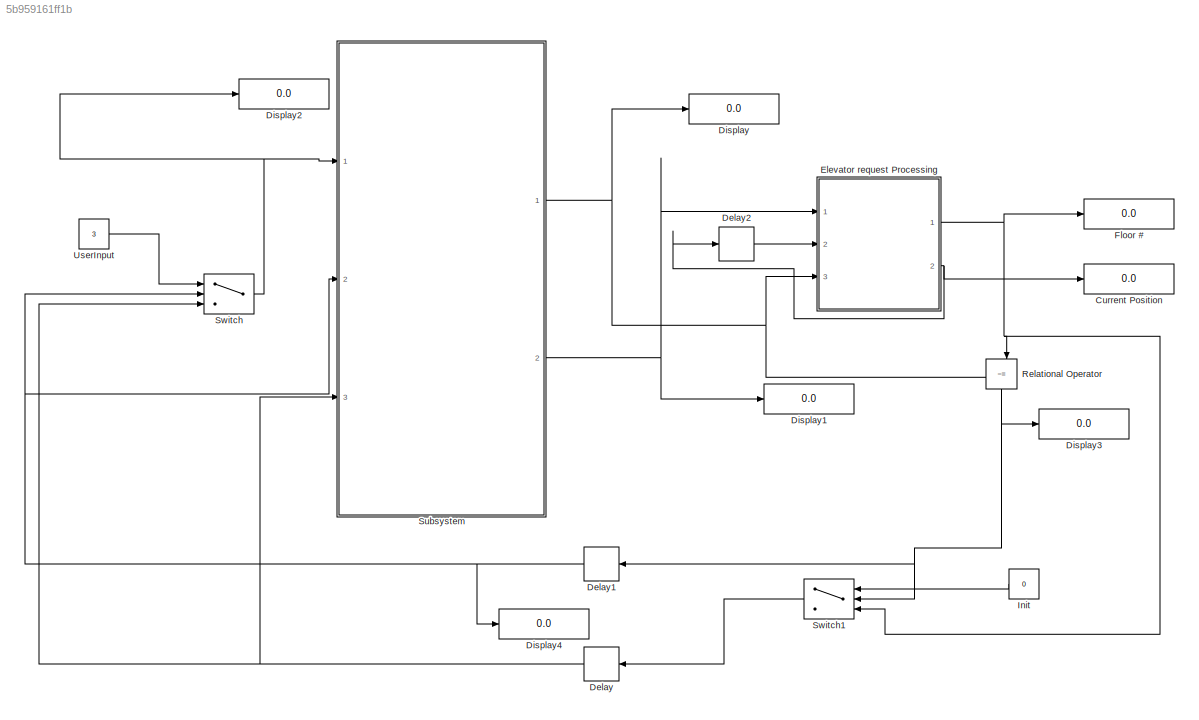
MODEL slx_5b959161ff1b
KIND model
BLOCK [Display] Current Position
  Decimation = 1
  Ports = [1]
BLOCK [Delay] Delay
  DelayLength = 100
  InitialCondition = 0
  InputPortMap = u0
  Ports = [1, 1]
  SampleTime = .0001
BLOCK [Delay] Delay1
  DelayLength = 100
  InitialCondition = 1
  InputPortMap = u0
  Ports = [1, 1]
  SampleTime = .0001
BLOCK [Delay] Delay2
  DelayLength = 100
  InitialCondition = 0
  InputPortMap = u0
  Ports = [1, 1]
  SampleTime = .0001
BLOCK [Display] Display
  Decimation = 1
  Ports = [1]
BLOCK [Display] Display1
  Decimation = 1
  Ports = [1]
BLOCK [Display] Display2
  Decimation = 1
  Ports = [1]
BLOCK [Display] Display3
  Decimation = 1
  Ports = [1]
BLOCK [Display] Display4
  Decimation = 1
  Ports = [1]
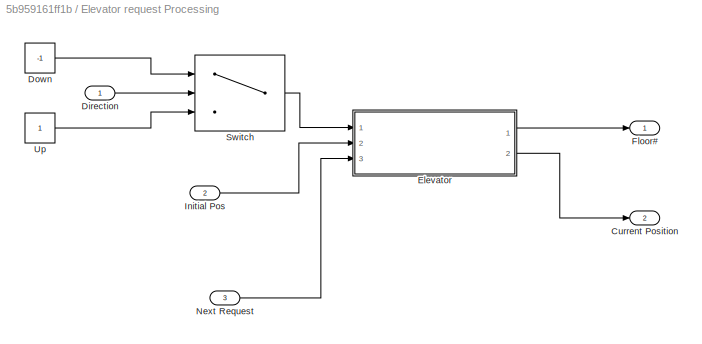
BLOCK [SubSystem] Elevator request Processing
  Ports = [3, 2]
  RequestExecContextInheritance = off
BLOCK [Outport] Elevator request Processing/Current Position
  IconDisplay = Port number
  Port = 2
BLOCK [Inport] Elevator request Processing/Direction
  IconDisplay = Port number
BLOCK [Constant] Elevator request Processing/Down
  Value = -1
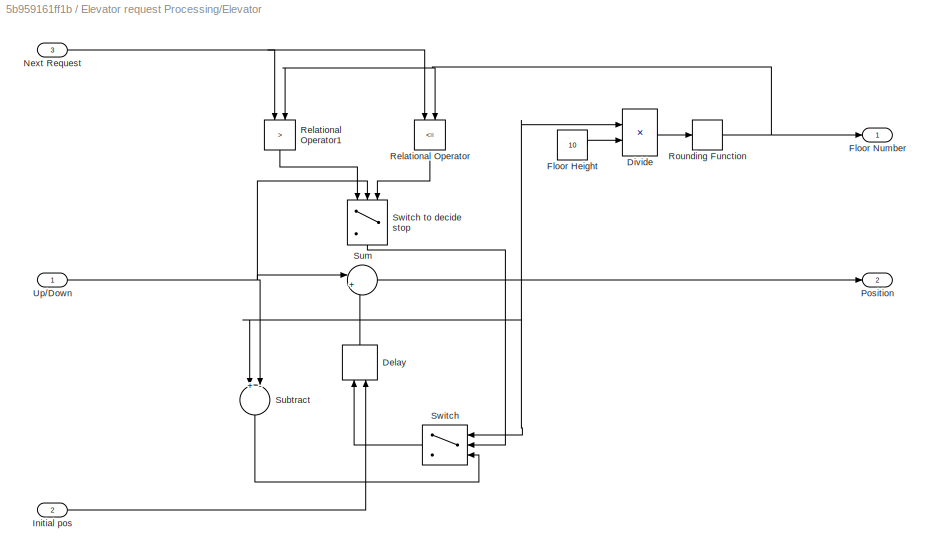
BLOCK [SubSystem] Elevator request Processing/Elevator
  Ports = [3, 2]
  RequestExecContextInheritance = off
BLOCK [Delay] Elevator request Processing/Elevator/Delay
  DelayLength = 1000
  InitialCondition = 2
  InitialConditionSource = Input port
  InputPortMap = u0,p4
  Ports = [2, 1]
  SampleTime = .001
BLOCK [Product] Elevator request Processing/Elevator/Divide
  InputSameDT = off
  Inputs = */
  LockScale = on
  OutDataTypeStr = Inherit: Inherit via internal rule
  Ports = [2, 1]
  RndMeth = Nearest
  SaturateOnIntegerOverflow = off
BLOCK [Constant] Elevator request Processing/Elevator/Floor Height
  Value = 10
BLOCK [Outport] Elevator request Processing/Elevator/Floor Number
  IconDisplay = Port number
BLOCK [Inport] Elevator request Processing/Elevator/Initial pos
  IconDisplay = Port number
  Port = 2
BLOCK [Inport] Elevator request Processing/Elevator/Next Request
  IconDisplay = Port number
  Port = 3
BLOCK [Outport] Elevator request Processing/Elevator/Position
  IconDisplay = Port number
  Port = 2
BLOCK [RelationalOperator] Elevator request Processing/Elevator/Relational Operator
  InputSameDT = off
  Operator = <=
  OutDataTypeStr = boolean
  Ports = [2, 1]
BLOCK [RelationalOperator] Elevator request Processing/Elevator/Relational Operator1
  InputSameDT = off
  Operator = >
  OutDataTypeStr = boolean
  Ports = [2, 1]
BLOCK [Rounding] Elevator request Processing/Elevator/Rounding Function
BLOCK [Sum] Elevator request Processing/Elevator/Subtract
  InputSameDT = off
  Inputs = +-
  OutDataTypeStr = Inherit: Inherit via internal rule
  Ports = [2, 1]
  SaturateOnIntegerOverflow = off
BLOCK [Sum] Elevator request Processing/Elevator/Sum
  IconShape = round
  InputSameDT = off
  Inputs = |++
  OutDataTypeStr = Inherit: Inherit via internal rule
  Ports = [2, 1]
  SaturateOnIntegerOverflow = off
BLOCK [Switch] Elevator request Processing/Elevator/Switch
  Criteria = u2 ~= 0
  InputSameDT = off
  SaturateOnIntegerOverflow = off
BLOCK [Switch] Elevator request Processing/Elevator/Switch to decide stop
  InputSameDT = off
  SaturateOnIntegerOverflow = off
  Threshold = 1
BLOCK [Inport] Elevator request Processing/Elevator/Up//Down
  IconDisplay = Port number
BLOCK [Outport] Elevator request Processing/Floor#
  IconDisplay = Port number
BLOCK [Inport] Elevator request Processing/Initial Pos
  IconDisplay = Port number
  Port = 2
BLOCK [Inport] Elevator request Processing/Next Request
  IconDisplay = Port number
  Port = 3
BLOCK [Switch] Elevator request Processing/Switch
  Criteria = u2 ~= 0
  InputSameDT = off
  SaturateOnIntegerOverflow = off
BLOCK [Constant] Elevator request Processing/Up
BLOCK [Display] Floor #
  Decimation = 1
  Ports = [1]
BLOCK [Constant] Init
  Value = 0
BLOCK [RelationalOperator] Relational Operator
  InputSameDT = off
  Operator = ~=
  OutDataTypeStr = boolean
  Ports = [2, 1]
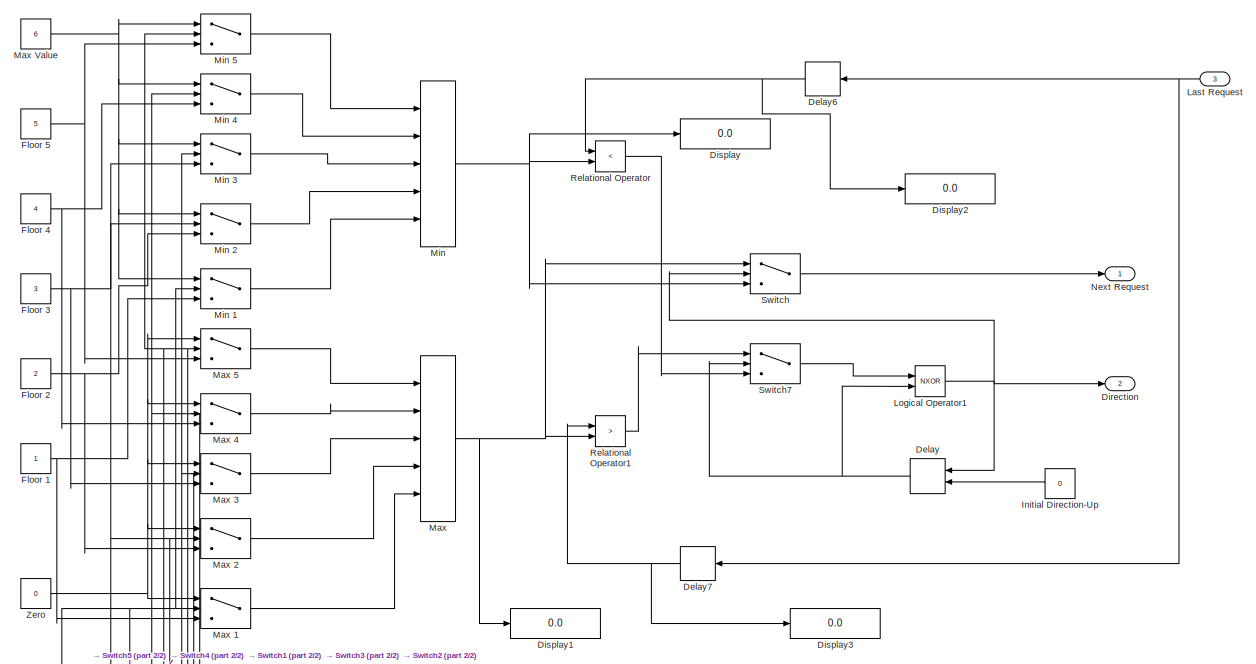
[diagram: Subsystem - part 1/2, full width, top band]
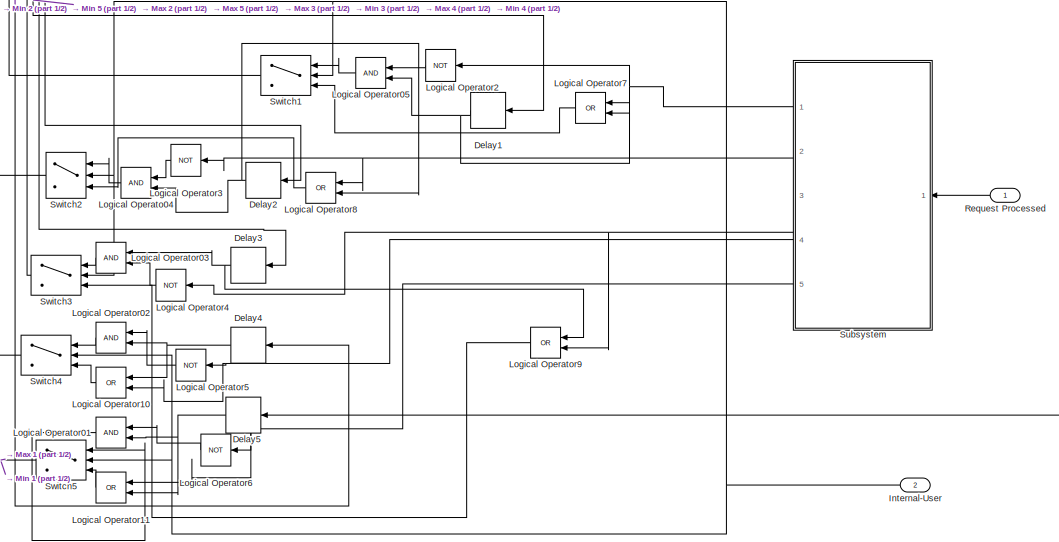
[diagram: Subsystem - part 2/2, full width, bottom band]
BLOCK [SubSystem] Subsystem
  Ports = [3, 2]
  RequestExecContextInheritance = off
BLOCK [Delay] Subsystem/Delay
  DelayLength = 1
  InitialCondition = 0
  InitialConditionSource = Input port
  InputPortMap = u0,p4
  Ports = [2, 1]
  SampleTime = 1
BLOCK [Delay] Subsystem/Delay1
  DelayLength = 1
  InitialCondition = 1
  InputPortMap = u0
  Ports = [1, 1]
  SampleTime = 1
BLOCK [Delay] Subsystem/Delay2
  DelayLength = 1
  InitialCondition = 1
  InputPortMap = u0
  Ports = [1, 1]
  SampleTime = 1
BLOCK [Delay] Subsystem/Delay3
  DelayLength = 1
  InitialCondition = 1
  InputPortMap = u0
  Ports = [1, 1]
  SampleTime = 1
BLOCK [Delay] Subsystem/Delay4
  DelayLength = 1
  InitialCondition = 1
  InputPortMap = u0
  Ports = [1, 1]
  SampleTime = 1
BLOCK [Delay] Subsystem/Delay5
  DelayLength = 1
  InitialCondition = 1
  InputPortMap = u0
  Ports = [1, 1]
  SampleTime = 1
BLOCK [Delay] Subsystem/Delay6
  DelayLength = 1
  InitialCondition = 0
  InputPortMap = u0
  Ports = [1, 1]
BLOCK [Delay] Subsystem/Delay7
  DelayLength = 1
  InitialCondition = 0
  InputPortMap = u0
  Ports = [1, 1]
BLOCK [Outport] Subsystem/Direction
  IconDisplay = Port number
  Port = 2
BLOCK [Display] Subsystem/Display
  Decimation = 1
  Ports = [1]
BLOCK [Display] Subsystem/Display1
  Decimation = 1
  Ports = [1]
BLOCK [Display] Subsystem/Display2
  Decimation = 1
  Ports = [1]
BLOCK [Display] Subsystem/Display3
  Decimation = 1
  Ports = [1]
BLOCK [Constant] Subsystem/Floor 1
BLOCK [Constant] Subsystem/Floor 2
  Value = 2
BLOCK [Constant] Subsystem/Floor 3
  Value = 3
BLOCK [Constant] Subsystem/Floor 4
  Value = 4
BLOCK [Constant] Subsystem/Floor 5
  Value = 5
BLOCK [Constant] Subsystem/Initial Direction-Up
  OutDataTypeStr = boolean
  Value = 0
BLOCK [Inport] Subsystem/Internal-User
  IconDisplay = Port number
  Port = 2
BLOCK [Inport] Subsystem/Last Request
  IconDisplay = Port number
  Port = 3
BLOCK [Logic] Subsystem/Logical Operato04
  AllPortsSameDT = off
  OutDataTypeStr = boolean
  Ports = [2, 1]
BLOCK [Logic] Subsystem/Logical Operator01
  AllPortsSameDT = off
  OutDataTypeStr = boolean
  Ports = [2, 1]
BLOCK [Logic] Subsystem/Logical Operator02
  AllPortsSameDT = off
  OutDataTypeStr = boolean
  Ports = [2, 1]
BLOCK [Logic] Subsystem/Logical Operator03
  AllPortsSameDT = off
  OutDataTypeStr = boolean
  Ports = [2, 1]
BLOCK [Logic] Subsystem/Logical Operator05
  AllPortsSameDT = off
  OutDataTypeStr = boolean
  Ports = [2, 1]
BLOCK [Logic] Subsystem/Logical Operator1
  AllPortsSameDT = off
  Operator = NXOR
  OutDataTypeStr = boolean
  Ports = [2, 1]
BLOCK [Logic] Subsystem/Logical Operator10
  AllPortsSameDT = off
  Operator = OR
  OutDataTypeStr = boolean
  Ports = [2, 1]
BLOCK [Logic] Subsystem/Logical Operator11
  AllPortsSameDT = off
  Operator = OR
  OutDataTypeStr = boolean
  Ports = [2, 1]
BLOCK [Logic] Subsystem/Logical Operator2
  AllPortsSameDT = off
  Operator = NOT
  OutDataTypeStr = boolean
  Ports = [1, 1]
BLOCK [Logic] Subsystem/Logical Operator3
  AllPortsSameDT = off
  Operator = NOT
  OutDataTypeStr = boolean
  Ports = [1, 1]
BLOCK [Logic] Subsystem/Logical Operator4
  AllPortsSameDT = off
  Operator = NOT
  OutDataTypeStr = boolean
  Ports = [1, 1]
BLOCK [Logic] Subsystem/Logical Operator5
  AllPortsSameDT = off
  Operator = NOT
  OutDataTypeStr = boolean
  Ports = [1, 1]
BLOCK [Logic] Subsystem/Logical Operator6
  AllPortsSameDT = off
  Operator = NOT
  OutDataTypeStr = boolean
  Ports = [1, 1]
BLOCK [Logic] Subsystem/Logical Operator7
  AllPortsSameDT = off
  Operator = OR
  OutDataTypeStr = boolean
  Ports = [2, 1]
BLOCK [Logic] Subsystem/Logical Operator8
  AllPortsSameDT = off
  Operator = OR
  OutDataTypeStr = boolean
  Ports = [2, 1]
BLOCK [Logic] Subsystem/Logical Operator9
  AllPortsSameDT = off
  Operator = OR
  OutDataTypeStr = boolean
  Ports = [2, 1]
BLOCK [MinMax] Subsystem/Max
  Function = max
  InputSameDT = off
  Inputs = 5
  Ports = [5, 1]
  SaturateOnIntegerOverflow = off
BLOCK [Switch] Subsystem/Max 1
  Criteria = u2 ~= 0
  InputSameDT = off
  SaturateOnIntegerOverflow = off
BLOCK [Switch] Subsystem/Max 2
  Criteria = u2 ~= 0
  InputSameDT = off
  SaturateOnIntegerOverflow = off
BLOCK [Switch] Subsystem/Max 3
  Criteria = u2 ~= 0
  InputSameDT = off
  SaturateOnIntegerOverflow = off
BLOCK [Switch] Subsystem/Max 4
  Criteria = u2 ~= 0
  InputSameDT = off
  SaturateOnIntegerOverflow = off
BLOCK [Switch] Subsystem/Max 5
  Criteria = u2 ~= 0
  InputSameDT = off
  SaturateOnIntegerOverflow = off
BLOCK [Constant] Subsystem/Max Value
  Value = 6
BLOCK [MinMax] Subsystem/Min
  InputSameDT = off
  Inputs = 5
  Ports = [5, 1]
  SaturateOnIntegerOverflow = off
BLOCK [Switch] Subsystem/Min 1
  Criteria = u2 ~= 0
  InputSameDT = off
  SaturateOnIntegerOverflow = off
BLOCK [Switch] Subsystem/Min 2
  Criteria = u2 ~= 0
  InputSameDT = off
  SaturateOnIntegerOverflow = off
BLOCK [Switch] Subsystem/Min 3
  Criteria = u2 ~= 0
  InputSameDT = off
  SaturateOnIntegerOverflow = off
BLOCK [Switch] Subsystem/Min 4
  Criteria = u2 ~= 0
  InputSameDT = off
  SaturateOnIntegerOverflow = off
BLOCK [Switch] Subsystem/Min 5
  Criteria = u2 ~= 0
  InputSameDT = off
  SaturateOnIntegerOverflow = off
  Threshold = 5
BLOCK [Outport] Subsystem/Next Request
  IconDisplay = Port number
BLOCK [RelationalOperator] Subsystem/Relational Operator
  InputSameDT = off
  Operator = <
  OutDataTypeStr = boolean
  Ports = [2, 1]
BLOCK [RelationalOperator] Subsystem/Relational Operator1
  InputSameDT = off
  Operator = >
  OutDataTypeStr = boolean
  Ports = [2, 1]
BLOCK [Inport] Subsystem/Request Processed
  IconDisplay = Port number
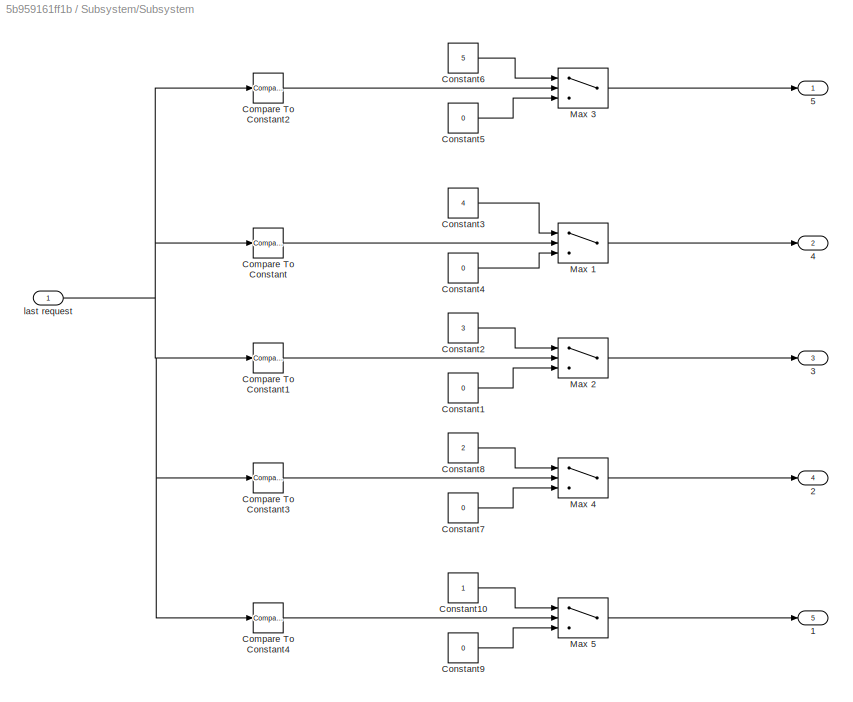
BLOCK [SubSystem] Subsystem/Subsystem
  Ports = [1, 5]
  RequestExecContextInheritance = off
BLOCK [Outport] Subsystem/Subsystem/1
  IconDisplay = Port number
  Port = 5
BLOCK [Outport] Subsystem/Subsystem/2
  IconDisplay = Port number
  Port = 4
BLOCK [Outport] Subsystem/Subsystem/3
  IconDisplay = Port number
  Port = 3
BLOCK [Outport] Subsystem/Subsystem/4
  IconDisplay = Port number
  Port = 2
BLOCK [Outport] Subsystem/Subsystem/5
  IconDisplay = Port number
BLOCK [Reference] Subsystem/Subsystem/Compare To Constant  REF=simulink/Logic and Bit
Operations/Compare
To Constant
  OutDataTypeStr = boolean
  Ports = [1, 1]
  SourceBlock = simulink/Logic and Bit\nOperations/Compare\nTo Constant
  SourceType = Compare To Constant
  ZeroCross = on
  const = 4
  relop = ==
BLOCK [Reference] Subsystem/Subsystem/Compare To Constant1  REF=simulink/Logic and Bit
Operations/Compare
To Constant
  OutDataTypeStr = boolean
  Ports = [1, 1]
  SourceBlock = simulink/Logic and Bit\nOperations/Compare\nTo Constant
  SourceType = Compare To Constant
  ZeroCross = on
  const = 3
  relop = ==
BLOCK [Reference] Subsystem/Subsystem/Compare To Constant2  REF=simulink/Logic and Bit
Operations/Compare
To Constant
  OutDataTypeStr = boolean
  Ports = [1, 1]
  SourceBlock = simulink/Logic and Bit\nOperations/Compare\nTo Constant
  SourceType = Compare To Constant
  ZeroCross = on
  const = 5
  relop = ==
BLOCK [Reference] Subsystem/Subsystem/Compare To Constant3  REF=simulink/Logic and Bit
Operations/Compare
To Constant
  OutDataTypeStr = boolean
  Ports = [1, 1]
  SourceBlock = simulink/Logic and Bit\nOperations/Compare\nTo Constant
  SourceType = Compare To Constant
  ZeroCross = on
  const = 2
  relop = ==
BLOCK [Reference] Subsystem/Subsystem/Compare To Constant4  REF=simulink/Logic and Bit
Operations/Compare
To Constant
  OutDataTypeStr = boolean
  Ports = [1, 1]
  SourceBlock = simulink/Logic and Bit\nOperations/Compare\nTo Constant
  SourceType = Compare To Constant
  ZeroCross = on
  const = 1
  relop = ==
BLOCK [Constant] Subsystem/Subsystem/Constant1
  Value = 0
BLOCK [Constant] Subsystem/Subsystem/Constant10
BLOCK [Constant] Subsystem/Subsystem/Constant2
  Value = 3
BLOCK [Constant] Subsystem/Subsystem/Constant3
  Value = 4
BLOCK [Constant] Subsystem/Subsystem/Constant4
  Value = 0
BLOCK [Constant] Subsystem/Subsystem/Constant5
  Value = 0
BLOCK [Constant] Subsystem/Subsystem/Constant6
  Value = 5
BLOCK [Constant] Subsystem/Subsystem/Constant7
  Value = 0
BLOCK [Constant] Subsystem/Subsystem/Constant8
  Value = 2
BLOCK [Constant] Subsystem/Subsystem/Constant9
  Value = 0
BLOCK [Switch] Subsystem/Subsystem/Max 1
  Criteria = u2 ~= 0
  InputSameDT = off
  SaturateOnIntegerOverflow = off
BLOCK [Switch] Subsystem/Subsystem/Max 2
  Criteria = u2 ~= 0
  InputSameDT = off
  SaturateOnIntegerOverflow = off
BLOCK [Switch] Subsystem/Subsystem/Max 3
  Criteria = u2 ~= 0
  InputSameDT = off
  SaturateOnIntegerOverflow = off
BLOCK [Switch] Subsystem/Subsystem/Max 4
  Criteria = u2 ~= 0
  InputSameDT = off
  SaturateOnIntegerOverflow = off
BLOCK [Switch] Subsystem/Subsystem/Max 5
  Criteria = u2 ~= 0
  InputSameDT = off
  SaturateOnIntegerOverflow = off
BLOCK [Inport] Subsystem/Subsystem/last request
  IconDisplay = Port number
BLOCK [Switch] Subsystem/Switch
  Criteria = u2 ~= 0
  InputSameDT = off
  SaturateOnIntegerOverflow = off
BLOCK [Switch] Subsystem/Switch1
  Criteria = u2 > Threshold
  InputSameDT = off
  SaturateOnIntegerOverflow = off
BLOCK [Switch] Subsystem/Switch2
  Criteria = u2 > Threshold
  InputSameDT = off
  SaturateOnIntegerOverflow = off
BLOCK [Switch] Subsystem/Switch3
  Criteria = u2 > Threshold
  InputSameDT = off
  SaturateOnIntegerOverflow = off
BLOCK [Switch] Subsystem/Switch4
  Criteria = u2 > Threshold
  InputSameDT = off
  SaturateOnIntegerOverflow = off
BLOCK [Switch] Subsystem/Switch5
  Criteria = u2 > Threshold
  InputSameDT = off
  SaturateOnIntegerOverflow = off
BLOCK [Switch] Subsystem/Switch7
  Criteria = u2 ~= 0
  InputSameDT = off
  SaturateOnIntegerOverflow = off
BLOCK [Constant] Subsystem/Zero
  Value = 0
BLOCK [Switch] Switch
  Criteria = u2 > Threshold
  InputSameDT = off
  SaturateOnIntegerOverflow = off
BLOCK [Switch] Switch1
  Criteria = u2 > Threshold
  InputSameDT = off
  SaturateOnIntegerOverflow = off
BLOCK [Constant] UserInput
  Value = 3
NET Delay1:1 -> Display4:1, Subsystem:2, Switch:2
LINE Delay2:1 -> Elevator request Processing:2
NET Delay:1 -> Subsystem:3, Switch:3
LINE Elevator request Processing/Direction:1 -> Elevator request Processing/Switch:2
LINE Elevator request Processing/Down:1 -> Elevator request Processing/Switch:1
LINE Elevator request Processing/Elevator/Delay:1 -> Elevator request Processing/Elevator/Sum:2
LINE Elevator request Processing/Elevator/Divide:1 -> Elevator request Processing/Elevator/Rounding Function:1
LINE Elevator request Processing/Elevator/Floor Height:1 -> Elevator request Processing/Elevator/Divide:2
LINE Elevator request Processing/Elevator/Initial pos:1 -> Elevator request Processing/Elevator/Delay:2
NET Elevator request Processing/Elevator/Next Request:1 -> Elevator request Processing/Elevator/Relational Operator1:1, Elevator request Processing/Elevator/Relational Operator:1
LINE Elevator request Processing/Elevator/Relational Operator1:1 -> Elevator request Processing/Elevator/Switch to decide stop:1
LINE Elevator request Processing/Elevator/Relational Operator:1 -> Elevator request Processing/Elevator/Switch to decide stop:3
NET Elevator request Processing/Elevator/Rounding Function:1 -> Elevator request Processing/Elevator/Floor Number:1, Elevator request Processing/Elevator/Relational Operator1:2, Elevator request Processing/Elevator/Relational Operator:2
LINE Elevator request Processing/Elevator/Subtract:1 -> Elevator request Processing/Elevator/Switch:3
NET Elevator request Processing/Elevator/Sum:1 -> Elevator request Processing/Elevator/Divide:1, Elevator request Processing/Elevator/Position:1, Elevator request Processing/Elevator/Subtract:1, Elevator request Processing/Elevator/Switch:1
LINE Elevator request Processing/Elevator/Switch to decide stop:1 -> Elevator request Processing/Elevator/Switch:2
LINE Elevator request Processing/Elevator/Switch:1 -> Elevator request Processing/Elevator/Delay:1
NET Elevator request Processing/Elevator/Up//Down:1 -> Elevator request Processing/Elevator/Subtract:2, Elevator request Processing/Elevator/Sum:1, Elevator request Processing/Elevator/Switch to decide stop:2
LINE Elevator request Processing/Elevator:1 -> Elevator request Processing/Floor#:1
LINE Elevator request Processing/Elevator:2 -> Elevator request Processing/Current Position:1
LINE Elevator request Processing/Initial Pos:1 -> Elevator request Processing/Elevator:2
LINE Elevator request Processing/Next Request:1 -> Elevator request Processing/Elevator:3
LINE Elevator request Processing/Switch:1 -> Elevator request Processing/Elevator:1
LINE Elevator request Processing/Up:1 -> Elevator request Processing/Switch:3
NET Elevator request Processing:1 -> Floor #:1, Relational Operator:2, Switch1:3
NET Elevator request Processing:2 -> Current Position:1, Delay2:1
LINE Init:1 -> Switch1:1
NET Relational Operator:1 -> Delay1:1, Display3:1, Switch1:2
NET Subsystem/Delay1:1 -> Subsystem/Logical Operator05:2, Subsystem/Logical Operator7:2
NET Subsystem/Delay2:1 -> Subsystem/Logical Operato04:2, Subsystem/Logical Operator8:2
NET Subsystem/Delay3:1 -> Subsystem/Logical Operator03:1, Subsystem/Logical Operator9:1
NET Subsystem/Delay4:1 -> Subsystem/Logical Operator02:2, Subsystem/Logical Operator10:1
NET Subsystem/Delay5:1 -> Subsystem/Logical Operator01:2, Subsystem/Logical Operator11:2
NET Subsystem/Delay6:1 -> Subsystem/Display2:1, Subsystem/Relational Operator:1
NET Subsystem/Delay7:1 -> Subsystem/Display3:1, Subsystem/Relational Operator1:1
NET Subsystem/Delay:1 -> Subsystem/Logical Operator1:2, Subsystem/Switch7:2
NET Subsystem/Floor 1:1 -> Subsystem/Max 1:3, Subsystem/Min 1:3
NET Subsystem/Floor 2:1 -> Subsystem/Max 2:3, Subsystem/Min 2:3
NET Subsystem/Floor 3:1 -> Subsystem/Max 3:3, Subsystem/Min 3:3
NET Subsystem/Floor 4:1 -> Subsystem/Max 4:3, Subsystem/Min 4:3
NET Subsystem/Floor 5:1 -> Subsystem/Max 5:3, Subsystem/Min 5:3
LINE Subsystem/Initial Direction-Up:1 -> Subsystem/Delay:2
NET Subsystem/Internal-User:1 -> Subsystem/Switch1:2, Subsystem/Switch2:2, Subsystem/Switch3:2, Subsystem/Switch4:2, Subsystem/Switch5:2
NET Subsystem/Last Request:1 -> Subsystem/Delay6:1, Subsystem/Delay7:1
LINE Subsystem/Logical Operato04:1 -> Subsystem/Switch2:1
LINE Subsystem/Logical Operator01:1 -> Subsystem/Switch5:1
LINE Subsystem/Logical Operator02:1 -> Subsystem/Switch4:1
LINE Subsystem/Logical Operator03:1 -> Subsystem/Switch3:1
LINE Subsystem/Logical Operator05:1 -> Subsystem/Switch1:1
LINE Subsystem/Logical Operator10:1 -> Subsystem/Switch4:3
LINE Subsystem/Logical Operator11:1 -> Subsystem/Switch5:3
NET Subsystem/Logical Operator1:1 -> Subsystem/Delay:1, Subsystem/Direction:1, Subsystem/Switch:2
LINE Subsystem/Logical Operator2:1 -> Subsystem/Logical Operator05:1
LINE Subsystem/Logical Operator3:1 -> Subsystem/Logical Operato04:1
LINE Subsystem/Logical Operator4:1 -> Subsystem/Logical Operator03:2
LINE Subsystem/Logical Operator5:1 -> Subsystem/Logical Operator02:1
LINE Subsystem/Logical Operator6:1 -> Subsystem/Logical Operator01:1
LINE Subsystem/Logical Operator7:1 -> Subsystem/Switch1:3
LINE Subsystem/Logical Operator8:1 -> Subsystem/Switch2:3
LINE Subsystem/Logical Operator9:1 -> Subsystem/Switch3:3
LINE Subsystem/Max 1:1 -> Subsystem/Max:5
LINE Subsystem/Max 2:1 -> Subsystem/Max:4
LINE Subsystem/Max 3:1 -> Subsystem/Max:3
LINE Subsystem/Max 4:1 -> Subsystem/Max:2
LINE Subsystem/Max 5:1 -> Subsystem/Max:1
NET Subsystem/Max Value:1 -> Subsystem/Min 1:1, Subsystem/Min 2:1, Subsystem/Min 3:1, Subsystem/Min 4:1, Subsystem/Min 5:1
NET Subsystem/Max:1 -> Subsystem/Display1:1, Subsystem/Relational Operator1:2, Subsystem/Switch:1
LINE Subsystem/Min 1:1 -> Subsystem/Min:5
LINE Subsystem/Min 2:1 -> Subsystem/Min:4
LINE Subsystem/Min 3:1 -> Subsystem/Min:3
LINE Subsystem/Min 4:1 -> Subsystem/Min:2
LINE Subsystem/Min 5:1 -> Subsystem/Min:1
NET Subsystem/Min:1 -> Subsystem/Display:1, Subsystem/Relational Operator:2, Subsystem/Switch:3
LINE Subsystem/Relational Operator1:1 -> Subsystem/Switch7:1
LINE Subsystem/Relational Operator:1 -> Subsystem/Switch7:3
LINE Subsystem/Request Processed:1 -> Subsystem/Subsystem:1
LINE Subsystem/Subsystem/Compare To Constant1:1 -> Subsystem/Subsystem/Max 2:2
LINE Subsystem/Subsystem/Compare To Constant2:1 -> Subsystem/Subsystem/Max 3:2
LINE Subsystem/Subsystem/Compare To Constant3:1 -> Subsystem/Subsystem/Max 4:2
LINE Subsystem/Subsystem/Compare To Constant4:1 -> Subsystem/Subsystem/Max 5:2
LINE Subsystem/Subsystem/Compare To Constant:1 -> Subsystem/Subsystem/Max 1:2
LINE Subsystem/Subsystem/Constant10:1 -> Subsystem/Subsystem/Max 5:1
LINE Subsystem/Subsystem/Constant1:1 -> Subsystem/Subsystem/Max 2:3
LINE Subsystem/Subsystem/Constant2:1 -> Subsystem/Subsystem/Max 2:1
LINE Subsystem/Subsystem/Constant3:1 -> Subsystem/Subsystem/Max 1:1
LINE Subsystem/Subsystem/Constant4:1 -> Subsystem/Subsystem/Max 1:3
LINE Subsystem/Subsystem/Constant5:1 -> Subsystem/Subsystem/Max 3:3
LINE Subsystem/Subsystem/Constant6:1 -> Subsystem/Subsystem/Max 3:1
LINE Subsystem/Subsystem/Constant7:1 -> Subsystem/Subsystem/Max 4:3
LINE Subsystem/Subsystem/Constant8:1 -> Subsystem/Subsystem/Max 4:1
LINE Subsystem/Subsystem/Constant9:1 -> Subsystem/Subsystem/Max 5:3
LINE Subsystem/Subsystem/Max 1:1 -> Subsystem/Subsystem/4:1
LINE Subsystem/Subsystem/Max 2:1 -> Subsystem/Subsystem/3:1
LINE Subsystem/Subsystem/Max 3:1 -> Subsystem/Subsystem/5:1
LINE Subsystem/Subsystem/Max 4:1 -> Subsystem/Subsystem/2:1
LINE Subsystem/Subsystem/Max 5:1 -> Subsystem/Subsystem/1:1
NET Subsystem/Subsystem/last request:1 -> Subsystem/Subsystem/Compare To Constant1:1, Subsystem/Subsystem/Compare To Constant2:1, Subsystem/Subsystem/Compare To Constant3:1, Subsystem/Subsystem/Compare To Constant4:1, Subsystem/Subsystem/Compare To Constant:1
NET Subsystem/Subsystem:1 -> Subsystem/Logical Operator2:1, Subsystem/Logical Operator7:1
NET Subsystem/Subsystem:2 -> Subsystem/Logical Operator3:1, Subsystem/Logical Operator8:1
NET Subsystem/Subsystem:3 -> Subsystem/Logical Operator4:1, Subsystem/Logical Operator9:2
NET Subsystem/Subsystem:4 -> Subsystem/Logical Operator10:2, Subsystem/Logical Operator5:1
NET Subsystem/Subsystem:5 -> Subsystem/Logical Operator11:1, Subsystem/Logical Operator6:1
NET Subsystem/Switch1:1 -> Subsystem/Delay1:1, Subsystem/Max 5:2, Subsystem/Min 5:2
NET Subsystem/Switch2:1 -> Subsystem/Delay2:1, Subsystem/Max 4:2, Subsystem/Min 4:2
NET Subsystem/Switch3:1 -> Subsystem/Delay3:1, Subsystem/Max 3:2, Subsystem/Min 3:2
NET Subsystem/Switch4:1 -> Subsystem/Delay4:1, Subsystem/Max 2:2, Subsystem/Min 2:2
NET Subsystem/Switch5:1 -> Subsystem/Delay5:1, Subsystem/Max 1:2, Subsystem/Min 1:2
LINE Subsystem/Switch7:1 -> Subsystem/Logical Operator1:1
LINE Subsystem/Switch:1 -> Subsystem/Next Request:1
NET Subsystem/Zero:1 -> Subsystem/Max 1:1, Subsystem/Max 2:1, Subsystem/Max 3:1, Subsystem/Max 4:1, Subsystem/Max 5:1
NET Subsystem:1 -> Display:1, Elevator request Processing:3, Relational Operator:1
NET Subsystem:2 -> Display1:1, Elevator request Processing:1
LINE Switch1:1 -> Delay:1
NET Switch:1 -> Display2:1, Subsystem:1
LINE UserInput:1 -> Switch:1
note: NET lines group one-source signal fan-out (src -> all destinations, sorted); 1:1 wires keep LINE
